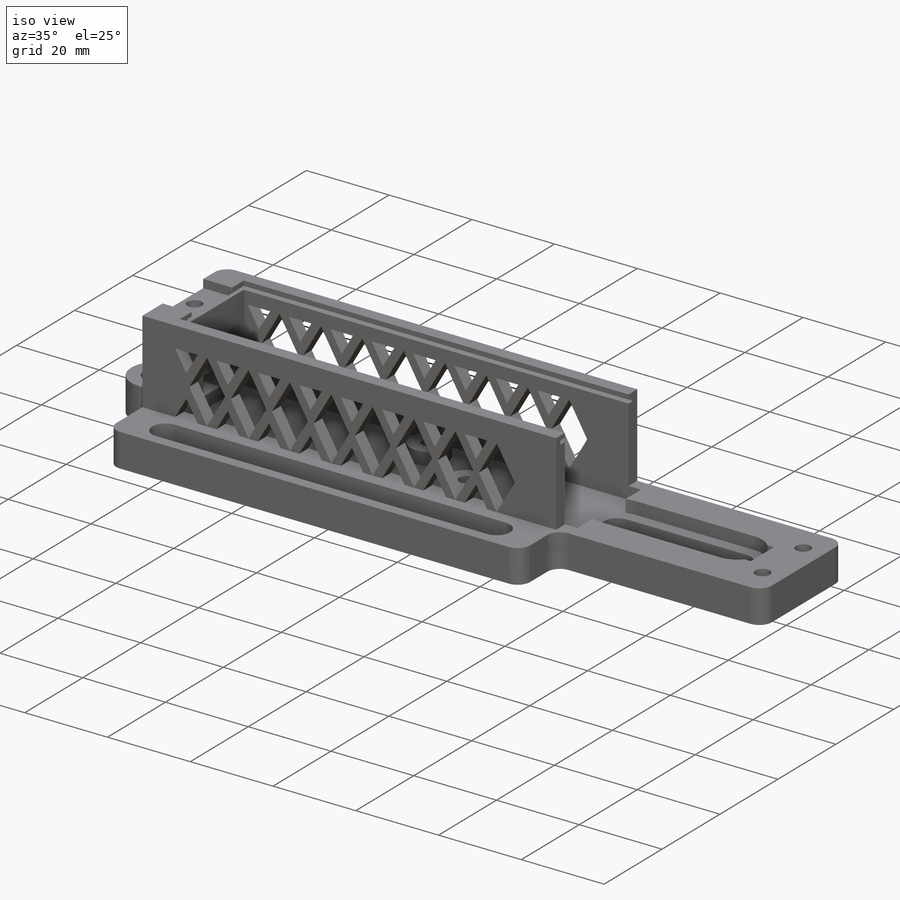
[diagram: iso view]
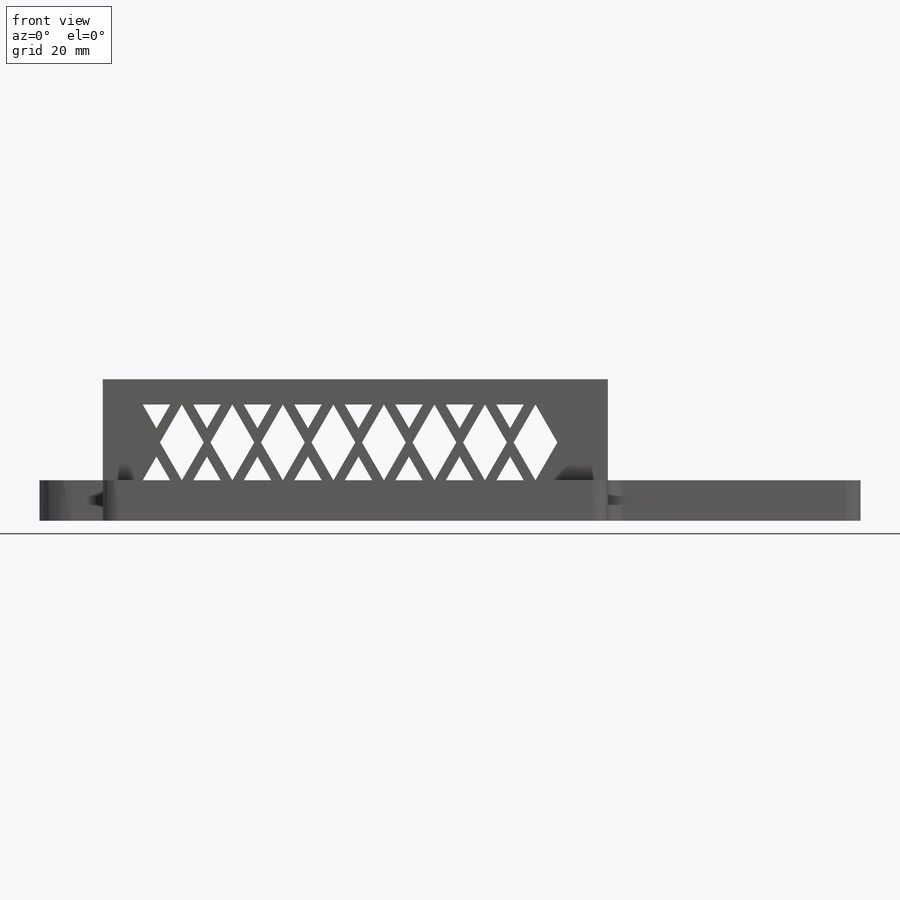
[diagram: front view]
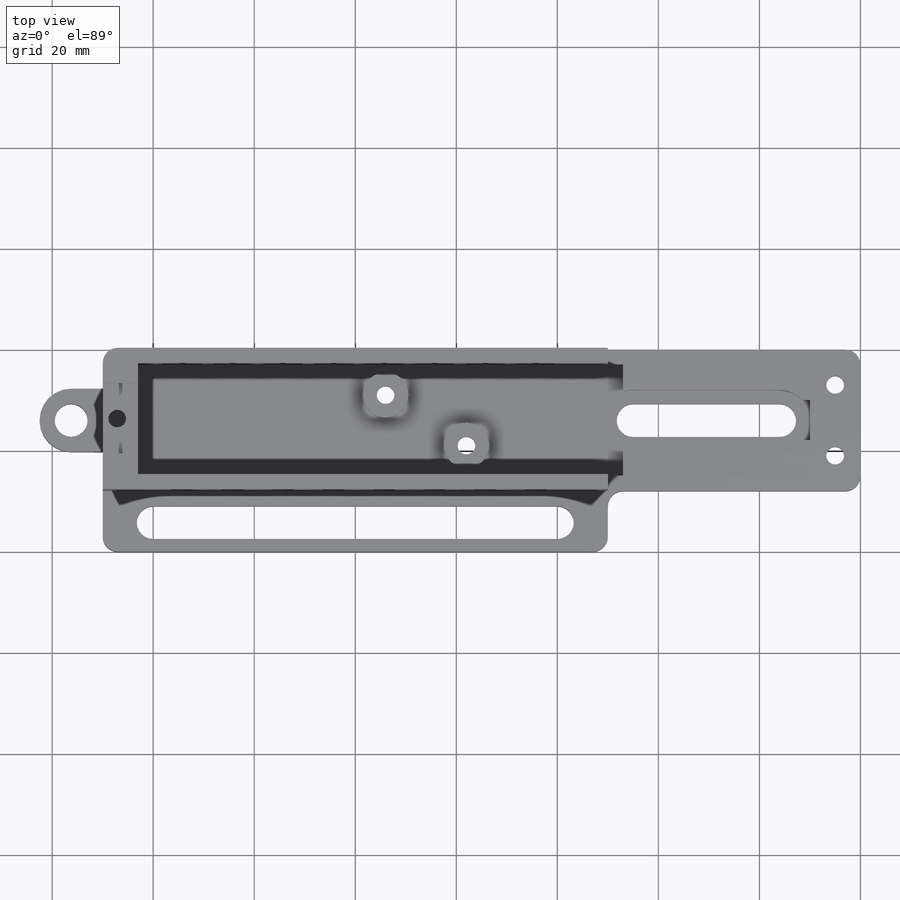
[diagram: top view]
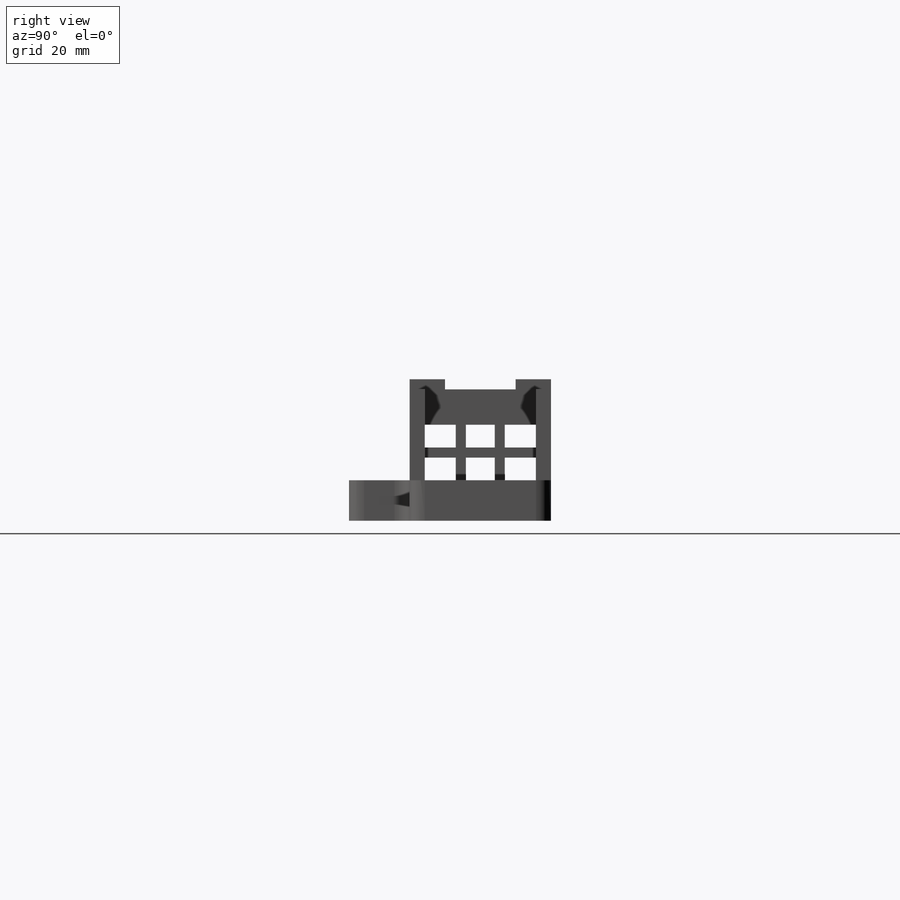
[diagram: right view]
SOLIDWORKS PART (.sldprt)
format: sldprt  version: not decoded by parser v0  size: 910,336 bytes
history: native  units: mm
features: sketch x20, cut_extrude x15, extrude x5, plane x3, material x1, pattern_linear x1, fillet x1 (+8 scaffold rows collapsed)
feature tree (54):
  scaffold x8  (default folders/planes/origin — collapsed)
  material  "Material <nicht festgelegt>"
  plane  "Ebene vorne"
  plane  "Ebene oben"
  plane  "Ebene rechts"
  sketch  "Skizze1"  dims[D1=100.0mm D2=40.0mm]
  extrude  "Aufsatz-Linear austragen1"  Depth=8mm
  sketch  "Skizze2"  dims[D1=23.0mm D2=22.0mm D3=3.0mm D4=81.0mm D5=7.0mm D6=6.0mm D7=6.0mm]
  cut_extrude  "Schnitt-Linear austragen1"  Depth=3mm
  sketch  "Skizze4"  dims[c1.D1=3.5mm c1.D2=3.5mm c1.D6=3.5mm c1.D3=10.0mm c1.D4=16.0mm c1.D5=6.0mm c2.D6=37.0mm]
  cut_extrude  "Schnitt-Linear austragen2"  [1 undecoded]
  sketch  "Skizze5"  dims[D1=5.7mm D2=5.7mm D3=6.15mm]
  cut_extrude  "Schnitt-Linear austragen3"  Depth=3mm
  sketch  "Skizze6"  dims[D1=3.0mm D2=7.0mm]
  extrude  "Aufsatz-Linear austragen2"  Depth=20mm
  sketch  "Skizze7"  dims[c1.D1=~9.764259mm c2.D1=60.0deg c2.D2=~10.870998mm c3.D2=60.0deg c3.D3=5.0mm c3.D4=8.0mm c3.D5=0.0mm c3.D6=0.0mm c3.D7=10.0mm c3.D8=~4.174213mm c4.D8=180.0deg c4.D9=0.0mm c4.D10=~0.452537mm c5.D8=2.0mm c5.D10=~3.292161mm c6.D10=60.0deg c6.D11=~5.486188mm c7.D11=0.0deg c8.D11=2.0mm c8.D12=~5.047143mm c9.D12=60.0deg c9.D13=0.7mm c9.D14=0.7mm]
  cut_extrude  "Schnitt-Linear austragen4"  [1 undecoded]
  pattern_linear  "Lineares Muster1"  Count1=8 Count2=1 Spacing1=10mm Spacing2=10mm
  sketch  "Skizze9"  dims[D1=1.5mm D2=1.5mm D3=1.0mm D4=1.0mm]
  cut_extrude  "Schnitt-Linear austragen5"  Depth=1mm
  sketch  "Skizze10"  dims[D1=4.0mm D2=4.0mm]
  cut_extrude  "Schnitt-Linear austragen6"  [1 undecoded]
  sketch  "Skizze11"  dims[c1.D1=5.7mm c1.D2=~3.290897mm c2.D2=180.0deg c3.D2=11.0mm c3.D3=0.0mm c3.D4=0.0mm c3.D5=2.85mm c3.D1=2.85mm c4.D5=5.7mm]
  cut_extrude  "Schnitt-Linear austragen7"  Depth=3mm
  sketch  "Skizze12"  dims[D3=3.5mm D1=2.85mm D2=2.85mm]
  cut_extrude  "Schnitt-Linear austragen8"  Depth=3mm
  sketch  "Skizze13"  dims[c1.D1=0.0mm c1.D2=3.0mm c1.D3=0.0mm c1.D4=0.0mm c1.D5=2.0mm c1.D6=0.0mm c1.D7=0.0mm c2.D4=1.0mm c2.D8=4.5mm c2.D3=2.0mm c2.D9=2.0mm c2.D10=0.0mm c2.D11=0.0mm c2.D12=0.0mm c2.D13=0.0mm c2.D14=0.0mm c2.D15=3.0mm c2.D16=3.0mm]
  cut_extrude  "Schnitt-Linear austragen9"  [1 undecoded]
  sketch  "Skizze14"  dims[D1=6.5mm D2=2.5mm D3=10.0mm D4=10.0mm]
  cut_extrude  "Schnitt-Linear austragen10"  [1 undecoded]
  sketch  "Skizze15"  dims[D1=0.0mm D2=8.0mm D3=4.0mm]
  extrude  "Aufsatz-Linear austragen3"  Depth=50mm
  sketch  "Skizze16"
  extrude  "Aufsatz-Linear austragen4"  Depth=10mm
  sketch  "Skizze17"  dims[c1.D3=~5.98382mm c1.D4=~3.790652mm c1.D5=3.5mm c1.D6=3.5mm c1.D1=5.0mm c1.D2=5.0mm c2.D3=7.0mm c2.D4=7.0mm]
  cut_extrude  "Schnitt-Linear austragen11"  [1 undecoded]
  sketch  "Skizze18"  dims[c1.D1=~4.095218mm c2.D1=180.0deg c3.D1=5.7mm c3.D2=5.7mm c3.D3=~3.290855mm c4.D3=180.0deg]
  cut_extrude  "Schnitt-Linear austragen12"  Depth=3mm
  fillet  "Verrundung1"  Radius=3mm
  sketch  "Skizze19"  dims[D3=9.0mm D4=9.0mm D1=0.0mm D2=3.0mm]
  cut_extrude  "Schnitt-Linear austragen13"  Depth=3mm
  sketch  "Skizze20"  dims[c1.D1=6.5mm c1.D2=3.5mm c1.D3=6.5mm c1.D7=~9.162876mm c1.D8=6.5mm c2.D2=0.0mm c2.D3=6.25mm c2.D4=0.0mm c2.D5=0.0mm c2.D6=0.0mm c2.D7=0.0mm c2.D8=3.0mm]
  extrude  "Aufsatz-Linear austragen5"  [1 undecoded]
  sketch  "Skizze21"  dims[D1=6.5mm D2=4.0mm D3=5.0mm D4=6.0mm]
  cut_extrude  "Schnitt-Linear austragen14"  [1 undecoded]
  sketch  "Skizze22"  dims[D1=12.0mm]
  cut_extrude  "Schnitt-Linear austragen16"  [1 undecoded]
decode coverage: 32 of 42 modeling features carry decoded parameters
note: ~ marks probable driven/reference dimensions
note: 9 parameter values undecoded
summary: no parameter record found for 9 features
note: suppression state not decoded; provenance and decode notes live in map.json
